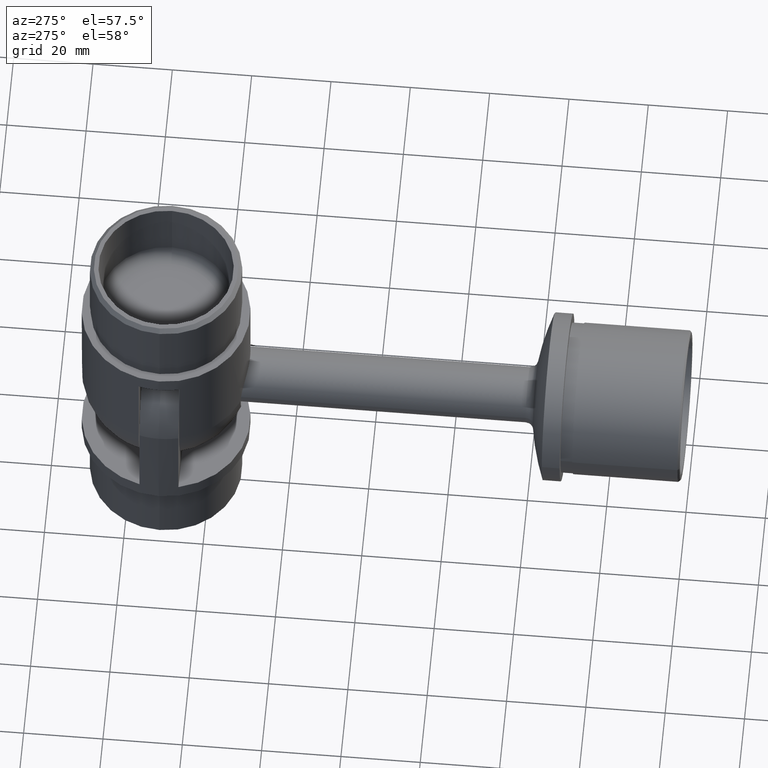
[diagram: clean part render]
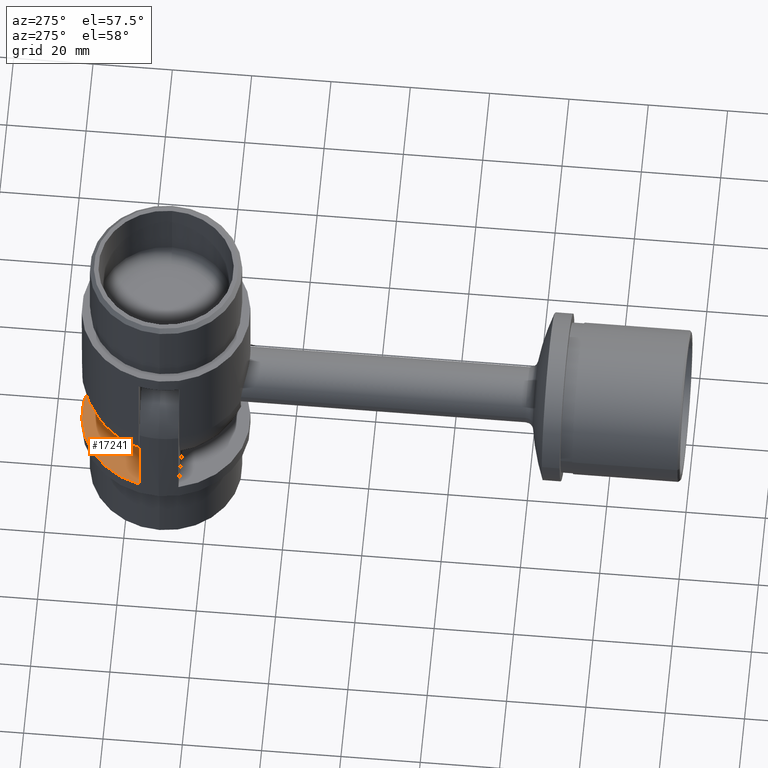
[diagram: same view with one face highlighted and labeled with its STEP entity id]
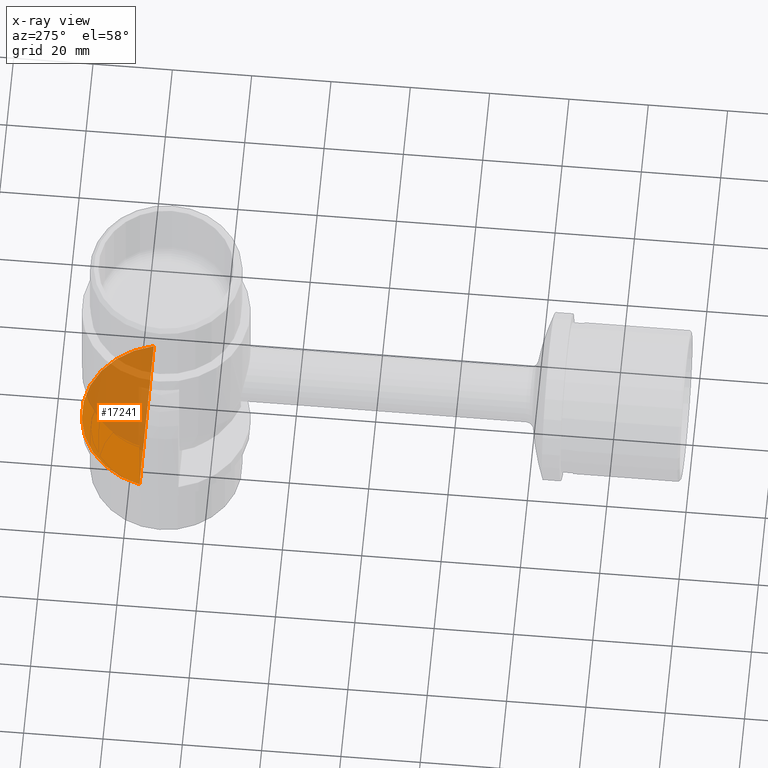
[diagram: x-ray of the same camera — body ghosted, the highlighted face saturated]
A machine part, auxiliary view. The second image highlights one B-rep face of the part: STEP entity #17241.
The next image is the same camera in x-ray: the body ghosted, the highlighted face saturated — about 65% of this face is hidden behind the body in this view.
In plain terms, the highlighted planar face has unit normal (0, 0, 1).
Its self-contained STEP definition (entity closure, byte-faithful):
#3 = CARTESIAN_POINT ( 'NONE',  ( -20.62595452336691437, 4.899999999999987921, 4.000000000000000000 ) ) ;
#263 = AXIS2_PLACEMENT_3D ( 'NONE', #8446, #18334, #6849 ) ;
#3788 = ORIENTED_EDGE ( 'NONE', *, *, #8091, .F. ) ;
#5588 = LINE ( 'NONE', #3, #19552 ) ;
#6849 = DIRECTION ( 'NONE',  ( 1.000000000000000000, 0.000000000000000000, 0.000000000000000000 ) ) ;
#8091 = EDGE_CURVE ( 'NONE', #13360, #9190, #5588, .T. ) ;
#8113 = PLANE ( 'NONE',  #15692 ) ;
#8446 = CARTESIAN_POINT ( 'NONE',  ( 0.000000000000000000, 0.000000000000000000, 4.000000000000000000 ) ) ;
#9190 = VERTEX_POINT ( 'NONE', #11296 ) ;
#9924 = DIRECTION ( 'NONE',  ( 1.000000000000000000, 0.000000000000000000, -0.000000000000000000 ) ) ;
#10352 = EDGE_LOOP ( 'NONE', ( #3788, #11737 ) ) ;
#11109 = EDGE_CURVE ( 'NONE', #13360, #9190, #16088, .T. ) ;
#11296 = CARTESIAN_POINT ( 'NONE',  ( -20.62595452336691437, 4.899999999999987921, 4.000000000000000000 ) ) ;
#11423 = DIRECTION ( 'NONE',  ( 0.000000000000000000, 0.000000000000000000, 1.000000000000000000 ) ) ;
#11737 = ORIENTED_EDGE ( 'NONE', *, *, #11109, .T. ) ;
#13360 = VERTEX_POINT ( 'NONE', #17208 ) ;
#13442 = DIRECTION ( 'NONE',  ( -1.000000000000000000, -0.000000000000000000, -0.000000000000000000 ) ) ;
#15692 = AXIS2_PLACEMENT_3D ( 'NONE', #21306, #11423, #9924 ) ;
#16088 = CIRCLE ( 'NONE', #263, 21.19999999999999929 ) ;
#16812 = FACE_OUTER_BOUND ( 'NONE', #10352, .T. ) ;
#17208 = CARTESIAN_POINT ( 'NONE',  ( 20.62595452336691437, 4.899999999999987921, 4.000000000000000000 ) ) ;
#17241 = ADVANCED_FACE ( 'NONE', ( #16812 ), #8113, .T. ) ;
#18334 = DIRECTION ( 'NONE',  ( 0.000000000000000000, 0.000000000000000000, 1.000000000000000000 ) ) ;
#19552 = VECTOR ( 'NONE', #13442, 1000.000000000000000 ) ;
#21306 = CARTESIAN_POINT ( 'NONE',  ( 0.000000000000000000, 0.000000000000000000, 4.000000000000000000 ) ) ;